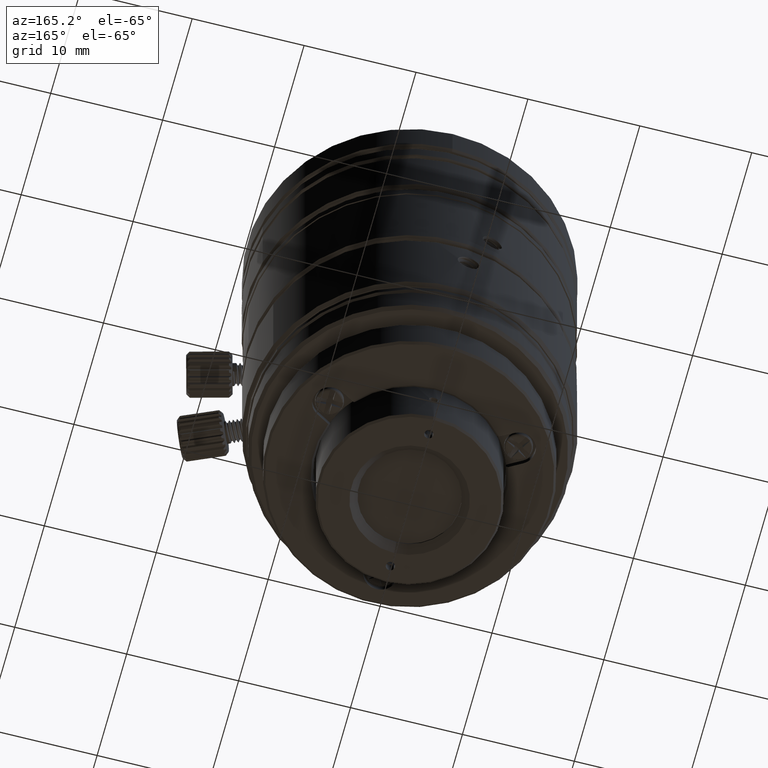
[diagram: clean part render]
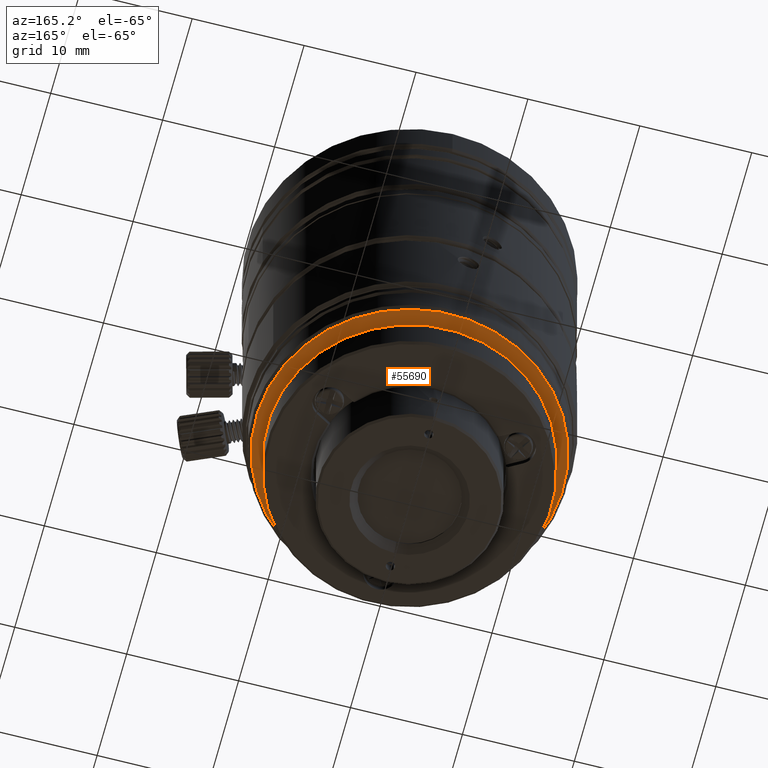
[diagram: same view with one face highlighted and labeled with its STEP entity id]
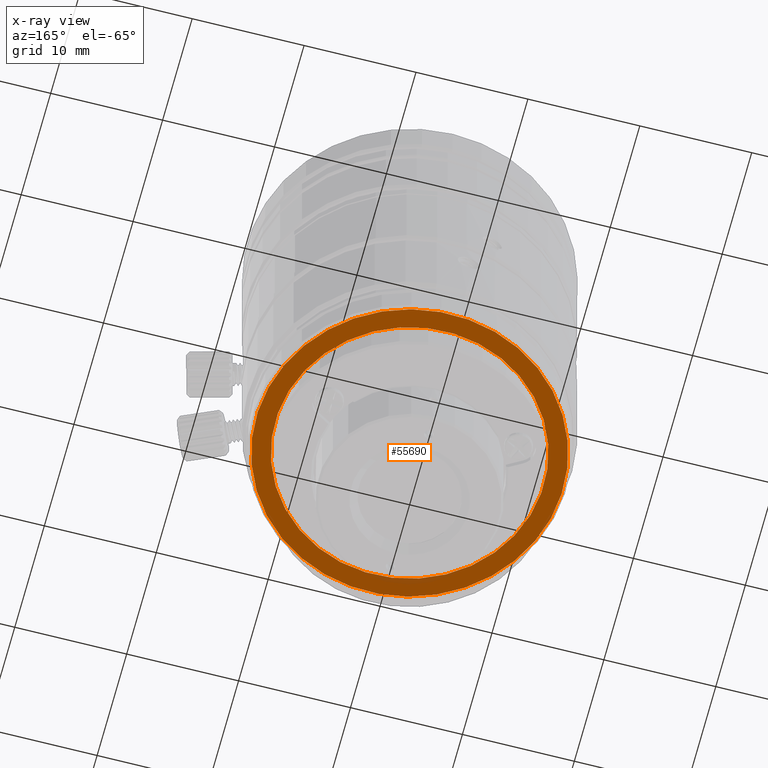
[diagram: x-ray of the same camera — body ghosted, the highlighted face saturated]
A machine part, auxiliary view. The second image highlights one B-rep face of the part: STEP entity #55690.
The next image is the same camera in x-ray: the body ghosted, the highlighted face saturated — about 3% of this face is hidden behind the body in this view.
In plain terms, the highlighted planar face has unit normal (0, 0, 1).
Its self-contained STEP definition (entity closure, byte-faithful):
#623 = CARTESIAN_POINT ( 'NONE',  ( -10.39231115010436746, 6.000003640014676343, 3.000000013010390099 ) ) ;
#5008 = CIRCLE ( 'NONE', #40633, 12.00000728002999750 ) ;
#5217 = PLANE ( 'NONE',  #48198 ) ;
#7969 = ORIENTED_EDGE ( 'NONE', *, *, #41985, .F. ) ;
#8269 = CIRCLE ( 'NONE', #65308, 13.70000726464999730 ) ;
#9113 = EDGE_LOOP ( 'NONE', ( #7969, #60851 ) ) ;
#14944 = DIRECTION ( 'NONE',  ( 0.000000000000000000, 0.000000000000000000, -1.000000000000000000 ) ) ;
#17009 = CARTESIAN_POINT ( 'NONE',  ( 0.000000000000000000, 0.000000000000000000, 3.000000013010390099 ) ) ;
#20458 = EDGE_LOOP ( 'NONE', ( #52845, #51913 ) ) ;
#21338 = CIRCLE ( 'NONE', #59032, 13.70000726464999730 ) ;
#24376 = VERTEX_POINT ( 'NONE', #50766 ) ;
#25819 = CARTESIAN_POINT ( 'NONE',  ( -6.000003640014680784, -10.39231115010440121, 3.000000013010400313 ) ) ;
#26333 = VERTEX_POINT ( 'NONE', #623 ) ;
#27876 = DIRECTION ( 'NONE',  ( 0.000000000000000000, 0.000000000000000000, 1.000000000000000000 ) ) ;
#28030 = VERTEX_POINT ( 'NONE', #40341 ) ;
#29848 = CARTESIAN_POINT ( 'NONE',  ( 11.86455432345615613, -6.850003632461873160, 3.000000013009530342 ) ) ;
#35945 = FACE_BOUND ( 'NONE', #9113, .T. ) ;
#39214 = DIRECTION ( 'NONE',  ( 1.000000000000000000, 0.000000000000000000, 0.000000000000000000 ) ) ;
#39316 = DIRECTION ( 'NONE',  ( 0.8660254037844541397, -0.4999999999999730771, 0.000000000000000000 ) ) ;
#39324 = DIRECTION ( 'NONE',  ( 0.000000000000000000, 0.000000000000000000, 1.000000000000000000 ) ) ;
#40341 = CARTESIAN_POINT ( 'NONE',  ( -11.86455432345615435, 6.850003632461870495, 3.000000013009530342 ) ) ;
#40633 = AXIS2_PLACEMENT_3D ( 'NONE', #17009, #63859, #47381 ) ;
#41190 = AXIS2_PLACEMENT_3D ( 'NONE', #61140, #14944, #56767 ) ;
#41347 = DIRECTION ( 'NONE',  ( 0.000000000000000000, 0.000000000000000000, 1.000000000000000000 ) ) ;
#41614 = VERTEX_POINT ( 'NONE', #29848 ) ;
#41754 = EDGE_CURVE ( 'NONE', #41614, #28030, #8269, .T. ) ;
#41985 = EDGE_CURVE ( 'NONE', #26333, #24376, #5008, .T. ) ;
#44669 = EDGE_CURVE ( 'NONE', #28030, #41614, #21338, .T. ) ;
#47381 = DIRECTION ( 'NONE',  ( -0.8660254037844541397, 0.4999999999999731326, 0.000000000000000000 ) ) ;
#48198 = AXIS2_PLACEMENT_3D ( 'NONE', #25819, #41347, #39214 ) ;
#48792 = CARTESIAN_POINT ( 'NONE',  ( 0.000000000000000000, 0.000000000000000000, 3.000000013009530342 ) ) ;
#50657 = EDGE_CURVE ( 'NONE', #24376, #26333, #53058, .T. ) ;
#50766 = CARTESIAN_POINT ( 'NONE',  ( 10.39231115010436746, -6.000003640014679895, 3.000000013010390099 ) ) ;
#51913 = ORIENTED_EDGE ( 'NONE', *, *, #41754, .F. ) ;
#52845 = ORIENTED_EDGE ( 'NONE', *, *, #44669, .F. ) ;
#53058 = CIRCLE ( 'NONE', #41190, 12.00000728002999750 ) ;
#54485 = CARTESIAN_POINT ( 'NONE',  ( 0.000000000000000000, 0.000000000000000000, 3.000000013009530342 ) ) ;
#55690 = ADVANCED_FACE ( 'NONE', ( #35945, #61892 ), #5217, .F. ) ;
#56767 = DIRECTION ( 'NONE',  ( -0.8660254037844541397, 0.4999999999999731326, 0.000000000000000000 ) ) ;
#59032 = AXIS2_PLACEMENT_3D ( 'NONE', #48792, #27876, #39316 ) ;
#60851 = ORIENTED_EDGE ( 'NONE', *, *, #50657, .F. ) ;
#61140 = CARTESIAN_POINT ( 'NONE',  ( 0.000000000000000000, 0.000000000000000000, 3.000000013010390099 ) ) ;
#61892 = FACE_OUTER_BOUND ( 'NONE', #20458, .T. ) ;
#63859 = DIRECTION ( 'NONE',  ( 0.000000000000000000, 0.000000000000000000, -1.000000000000000000 ) ) ;
#64925 = DIRECTION ( 'NONE',  ( 0.8660254037844541397, -0.4999999999999730771, 0.000000000000000000 ) ) ;
#65308 = AXIS2_PLACEMENT_3D ( 'NONE', #54485, #39324, #64925 ) ;